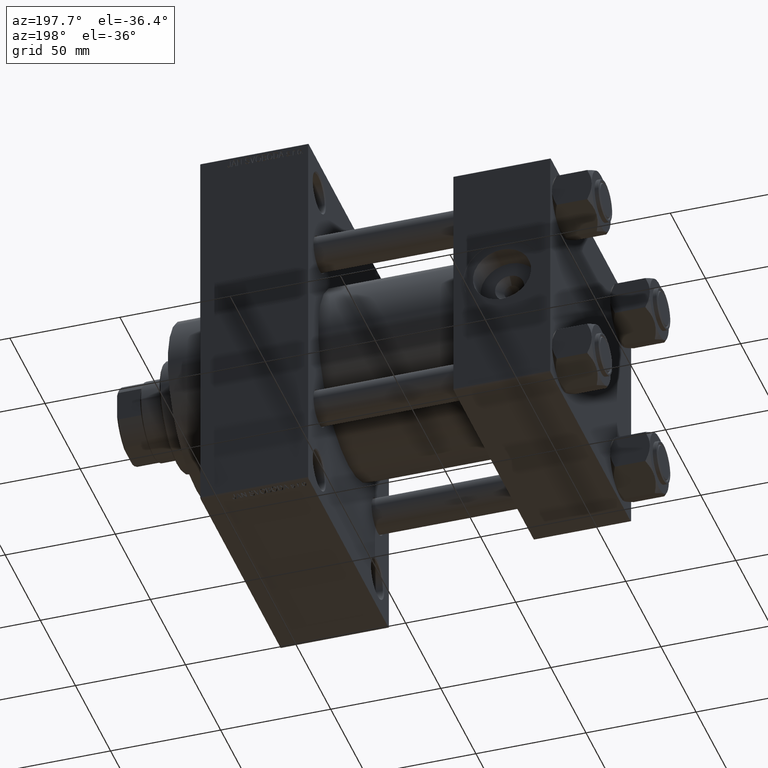
[diagram: clean part render]
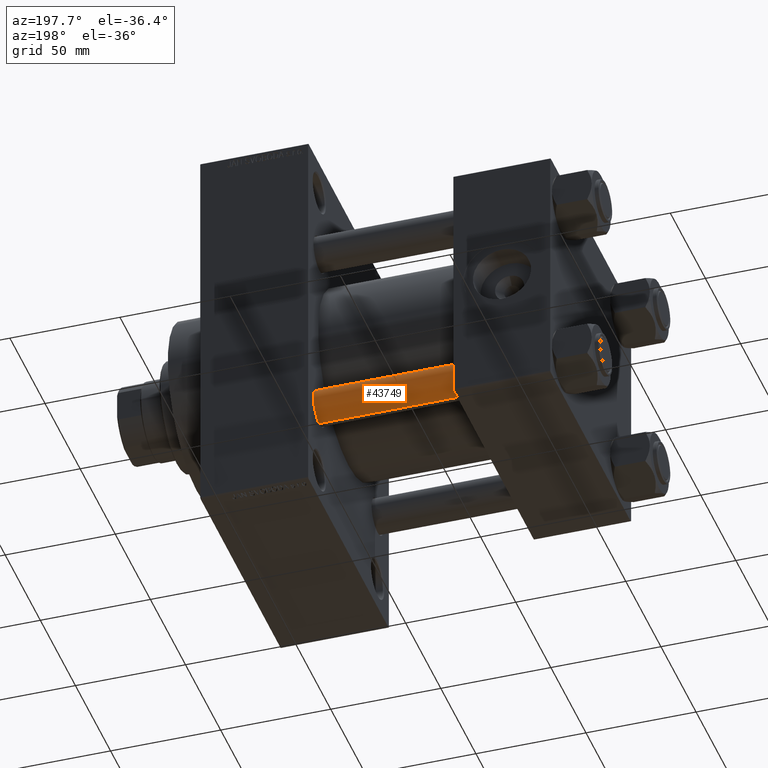
[diagram: same view with one face highlighted and labeled with its STEP entity id]
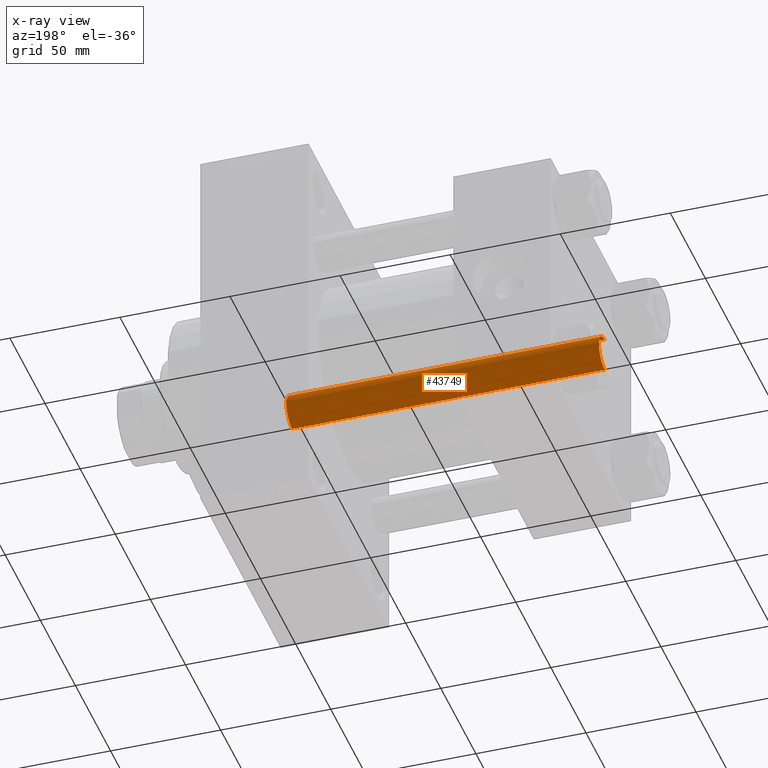
[diagram: x-ray of the same camera — body ghosted, the highlighted face saturated]
A machine part, auxiliary view. The second image highlights one B-rep face of the part: STEP entity #43749.
The next image is the same camera in x-ray: the body ghosted, the highlighted face saturated — about 0% of this face is hidden behind the body in this view.
In plain terms, the highlighted cylindrical surface (edge-blend (fillet) strip) has radius 8 mm, axis along (-1, -0, 0).
Its self-contained STEP definition (entity closure, byte-faithful):
#564 = DIRECTION ( 'NONE',  ( -0.000000000000000000, -0.000000000000000000, 1.000000000000000000 ) ) ;
#957 = VERTEX_POINT ( 'NONE', #44197 ) ;
#2416 = AXIS2_PLACEMENT_3D ( 'NONE', #12405, #27656, #16410 ) ;
#2489 = CIRCLE ( 'NONE', #8819, 8.000000000000000000 ) ;
#3836 = CARTESIAN_POINT ( 'NONE',  ( 8.000000000000000000, 9.797174393178825657E-16, 143.0000000000000000 ) ) ;
#4329 = LINE ( 'NONE', #3836, #34239 ) ;
#8560 = EDGE_CURVE ( 'NONE', #957, #12243, #4329, .T. ) ;
#8786 = CIRCLE ( 'NONE', #2416, 8.000000000000000000 ) ;
#8819 = AXIS2_PLACEMENT_3D ( 'NONE', #31551, #564, #12055 ) ;
#11276 = CARTESIAN_POINT ( 'NONE',  ( 8.000000000000000000, 9.797174393178825657E-16, 0.4999999999999726885 ) ) ;
#11447 = EDGE_LOOP ( 'NONE', ( #21095, #18281, #47174, #20320 ) ) ;
#12055 = DIRECTION ( 'NONE',  ( 1.000000000000000000, 0.000000000000000000, 0.000000000000000000 ) ) ;
#12243 = VERTEX_POINT ( 'NONE', #11276 ) ;
#12405 = CARTESIAN_POINT ( 'NONE',  ( 0.000000000000000000, 0.000000000000000000, 142.4999999999999716 ) ) ;
#14339 = FACE_OUTER_BOUND ( 'NONE', #11447, .T. ) ;
#16410 = DIRECTION ( 'NONE',  ( 1.000000000000000000, 0.000000000000000000, 0.000000000000000000 ) ) ;
#18281 = ORIENTED_EDGE ( 'NONE', *, *, #8560, .T. ) ;
#18337 = DIRECTION ( 'NONE',  ( -1.000000000000000000, 0.000000000000000000, 0.000000000000000000 ) ) ;
#19186 = EDGE_CURVE ( 'NONE', #30797, #40438, #46206, .T. ) ;
#20320 = ORIENTED_EDGE ( 'NONE', *, *, #19186, .F. ) ;
#21095 = ORIENTED_EDGE ( 'NONE', *, *, #28646, .T. ) ;
#21601 = DIRECTION ( 'NONE',  ( -0.000000000000000000, -0.000000000000000000, -1.000000000000000000 ) ) ;
#26080 = AXIS2_PLACEMENT_3D ( 'NONE', #29839, #21601, #18337 ) ;
#27203 = CARTESIAN_POINT ( 'NONE',  ( -8.000000000000000000, 0.000000000000000000, 143.0000000000000000 ) ) ;
#27656 = DIRECTION ( 'NONE',  ( 0.000000000000000000, 0.000000000000000000, -1.000000000000000000 ) ) ;
#28567 = VECTOR ( 'NONE', #42463, 1000.000000000000000 ) ;
#28646 = EDGE_CURVE ( 'NONE', #30797, #957, #8786, .T. ) ;
#29318 = EDGE_CURVE ( 'NONE', #12243, #40438, #2489, .T. ) ;
#29839 = CARTESIAN_POINT ( 'NONE',  ( 0.000000000000000000, 0.000000000000000000, 143.0000000000000000 ) ) ;
#30797 = VERTEX_POINT ( 'NONE', #47533 ) ;
#31551 = CARTESIAN_POINT ( 'NONE',  ( 0.000000000000000000, 0.000000000000000000, 0.4999999999999726885 ) ) ;
#34239 = VECTOR ( 'NONE', #43573, 1000.000000000000000 ) ;
#40438 = VERTEX_POINT ( 'NONE', #47966 ) ;
#42463 = DIRECTION ( 'NONE',  ( -0.000000000000000000, -0.000000000000000000, -1.000000000000000000 ) ) ;
#43573 = DIRECTION ( 'NONE',  ( -0.000000000000000000, -0.000000000000000000, -1.000000000000000000 ) ) ;
#43749 = ADVANCED_FACE ( 'NONE', ( #14339 ), #48602, .T. ) ;
#44197 = CARTESIAN_POINT ( 'NONE',  ( 8.000000000000000000, 9.797174393178825657E-16, 142.4999999999999716 ) ) ;
#46206 = LINE ( 'NONE', #27203, #28567 ) ;
#47174 = ORIENTED_EDGE ( 'NONE', *, *, #29318, .T. ) ;
#47533 = CARTESIAN_POINT ( 'NONE',  ( -8.000000000000000000, 0.000000000000000000, 142.4999999999999716 ) ) ;
#47966 = CARTESIAN_POINT ( 'NONE',  ( -8.000000000000000000, 0.000000000000000000, 0.4999999999999726885 ) ) ;
#48602 = CYLINDRICAL_SURFACE ( 'NONE', #26080, 8.000000000000000000 ) ;